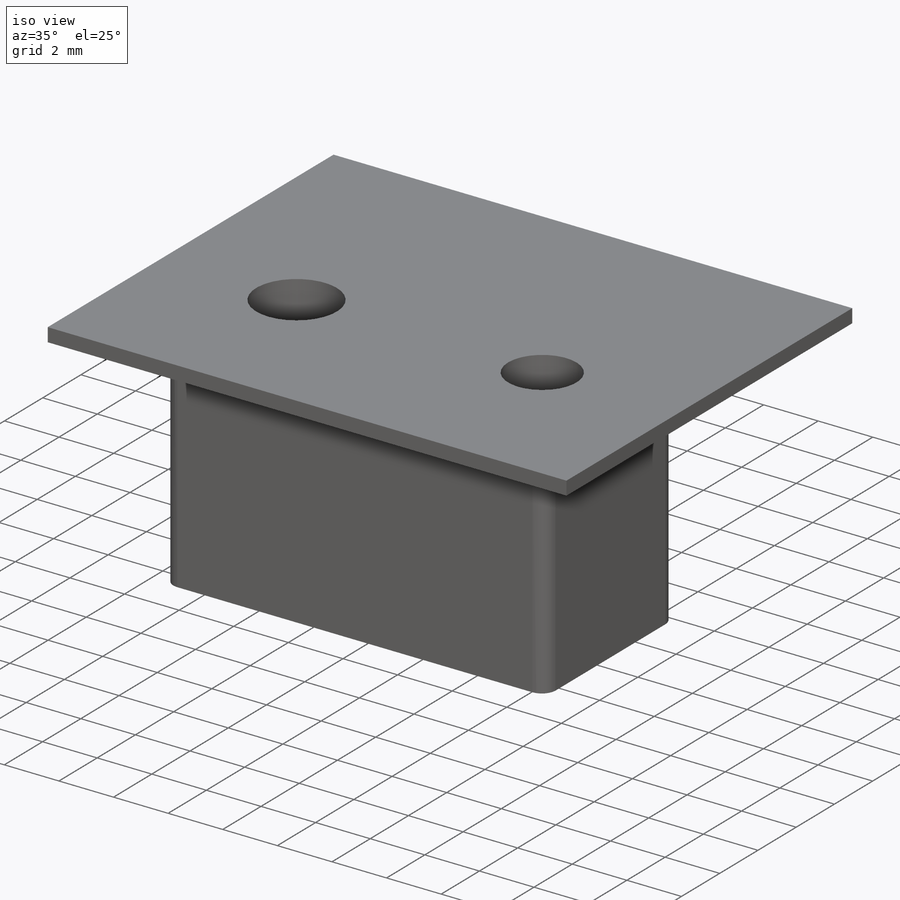
[diagram: iso view]
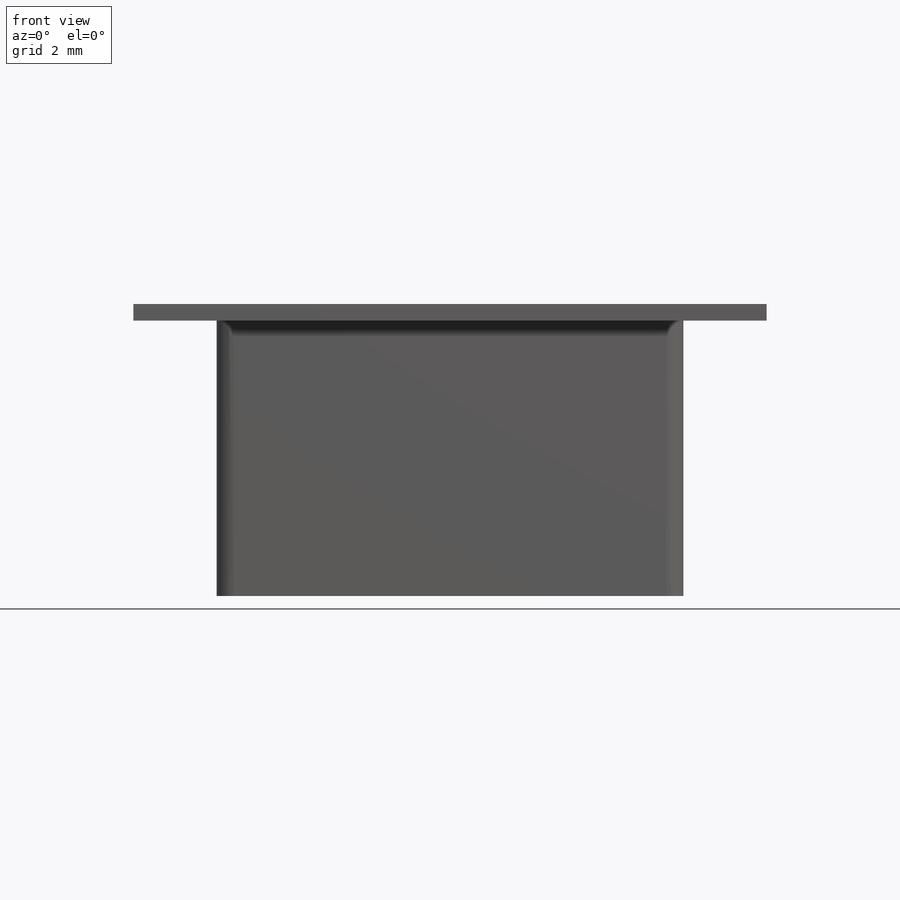
[diagram: front view]
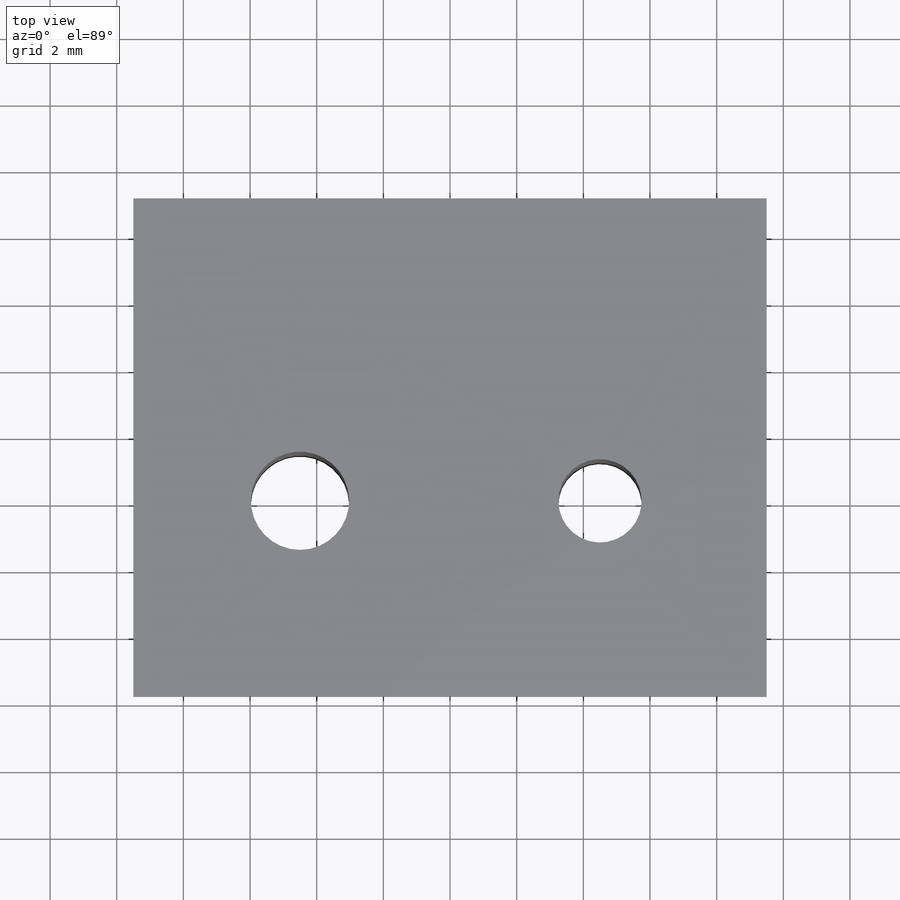
[diagram: top view]
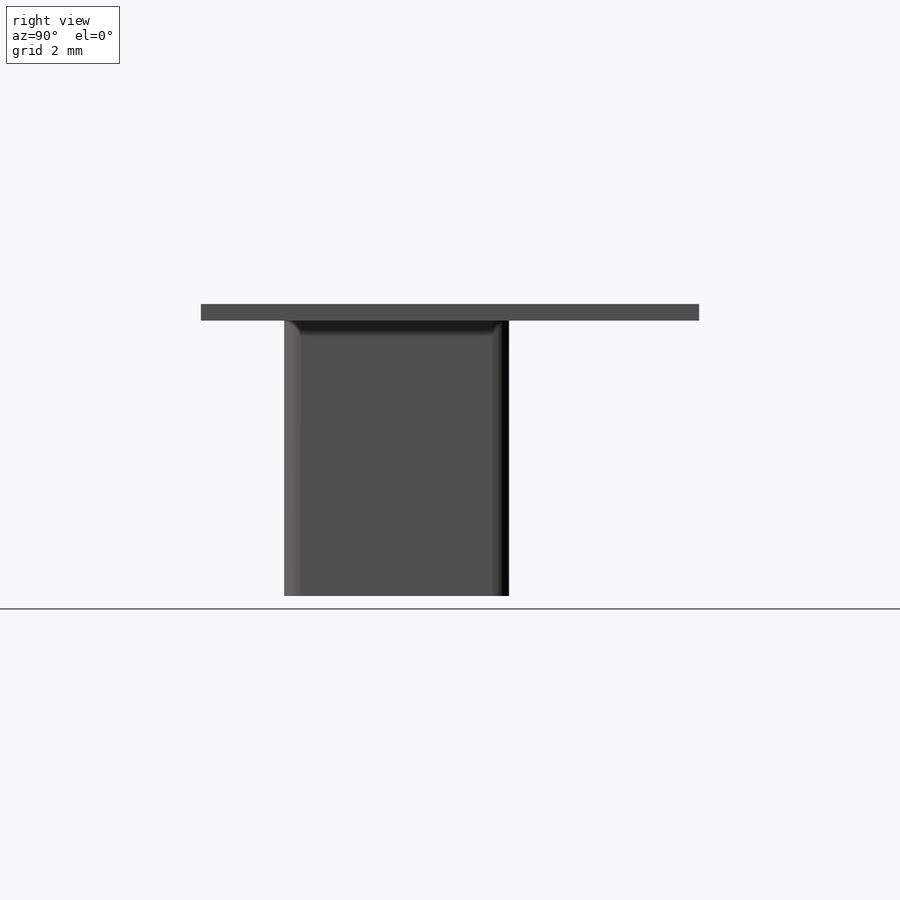
[diagram: right view]
SOLIDWORKS PART (.sldprt)
format: sldprt  version: not decoded by parser v0  size: 1,226,752 bytes
history: native  units: mm
features: sketch x9, extrude x5, plane x3, cut_revolve x2, cut_extrude x2, material x1, fillet x1 + 2 further entries (+13 scaffold rows collapsed)
feature tree (38):
  scaffold x13  (default folders/planes/origin — collapsed)
  material  "Material <not specified>"
  plane  "Plane1"
  plane  "Plane2"
  plane  "Plane3"
  "Axis2"
  "Axis3"
  sketch  "Sketch1"  dims[c1.D2=193.0125mm c1.D1=14.0mm c1.D3=185.0mm c2.D2=193.2625mm]
  extrude  "Extrude1"  Depth=6.75mm
  sketch  "Sketch4"  dims[D1=2.5mm]
  extrude  "Extrude2"  Depth=0.5mm
  sketch  "Sketch2"  dims[c1.D3=193.0125mm c1.D1=25.4mm c1.D2=93.98mm c1.4=25.4mm c1.D4=19.05mm c1.D7=33.02mm c1.D5=25.4mm c2.D3=50.8mm c2.D6=31.75mm c2.D5=58.42mm c2.D7=~8.980256mm c3.D7=90.0deg c3.D6=118.0deg c3.D8=~8.980256mm c4.D8=118.0deg c4.D9=~17.960512mm c5.D9=118.0deg c5.D3=50.8mm c5.D4=31.75mm c5.D5=58.42mm c5.D6=~4.444873mm c6.D6=120.0deg c6.D7=33.02mm c6.D8=~4.444873mm c7.D8=90.0deg c7.D9=~14.816244mm c8.D9=118.0deg c8.D1=12.7mm c8.D2=93.98mm c8.D3=25.4mm c9.D1=114.3mm c10.D1=135.0deg c11.D1=25.4mm c11.D2=93.98mm c11.D3=50.8mm c11.D4=~17.960512mm c12.D4=82.0deg c12.D5=~14.816244mm c13.D5=118.0deg c13.D6=12.7mm c13.D1=25.4mm c13.D2=93.98mm c13.D3=31.75mm c13.D4=~33.297463mm c14.D4=120.0deg c14.D5=~14.816244mm c15.D5=118.0deg c15.D1=25.4mm c15.D2=101.6mm c15.D3=31.75mm c15.D4=~3.666174mm c16.D4=120.0deg c16.D5=30.48mm c16.D6=~9.919017mm c17.D6=118.0deg c17.Thru Hole Dia.=2.9464mm c17.Thru Hole Depth=15.0mm c17.Near C'Sink Dia.=~5.888863mm c17.D4=~3.666174mm c17.Near C'Sink Angle=82.0deg c17.D1=~226.814783mm c18.D1=3.0deg c18.D2=0.01mm c19.D1=0.01mm c19.D2=6.985mm c20.D2=1.5deg c21.D2=~222.647281mm c22.D2=1.25deg c23.D2=8.8mm c24.D2=1.25deg c24.D3=0.25mm c25.D2=4.5mm c25.D3=~11.570042mm c25.D4=193.2625mm c25.D1=4.5mm]
  sketch  "Sketch3"  dims[c1.D1=~227.185789mm c2.D1=3.0deg c2.D2=2.5mm c3.D1=20.0mm c3.D3=~219.548288mm c4.D3=3.0deg c5.D3=20.0mm c5.D4=~222.647281mm c6.D4=3.0deg c7.D4=~199.013361mm c8.D4=1.25deg c8.D3=8.8mm c9.D3=1.25deg c10.D3=4.5mm]
  cut_revolve  "Cut-Revolve1"  Angle=360deg
  cut_revolve  "Cut-Revolve2"  Angle=360deg
  fillet  "Fillet1"  Radius=0.5mm
  sketch  "Sketch5"  dims[D1=0.0mm]
  extrude  "Boss-Extrude1"  Depth=3.24mm
  sketch  "Sketch6"  dims[D1=0.0mm]
  extrude  "Boss-Extrude2"  Depth=3.2mm
  sketch  "Sketch7"  dims[D1=0.0mm]
  cut_extrude  "Cut-Extrude2"  Depth=0.5mm
  sketch  "Sketch8"  dims[D1=0.0mm]
  extrude  "Boss-Extrude3"  Depth=20mm
  sketch  "Sketch9"  dims[c1.D1=~5.277138mm c2.D1=7.0deg c2.D2=5.0mm]
  cut_extrude  "Cut-Extrude3"  [1 undecoded]
decode coverage: 18 of 19 modeling features carry decoded parameters; 2 rows unclassified (native names shown)
note: ~ marks probable driven/reference dimensions
note: 1 parameter value undecoded
note: suppression state not decoded; provenance and decode notes live in map.json
